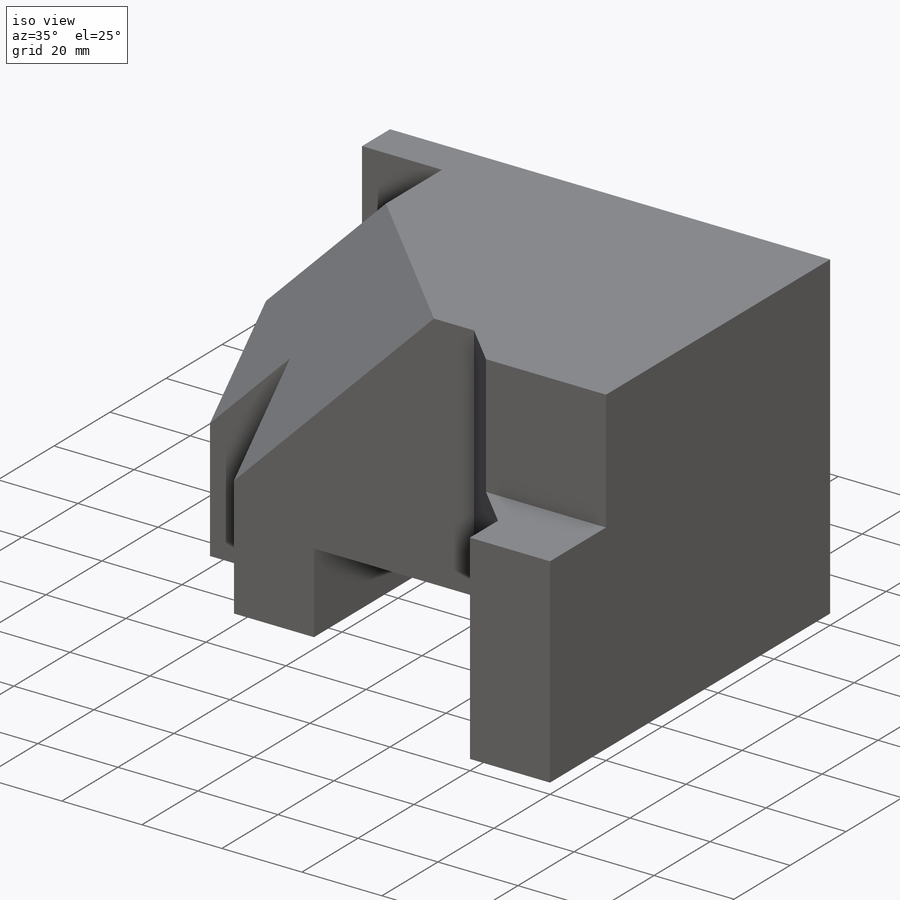
[diagram: iso view]
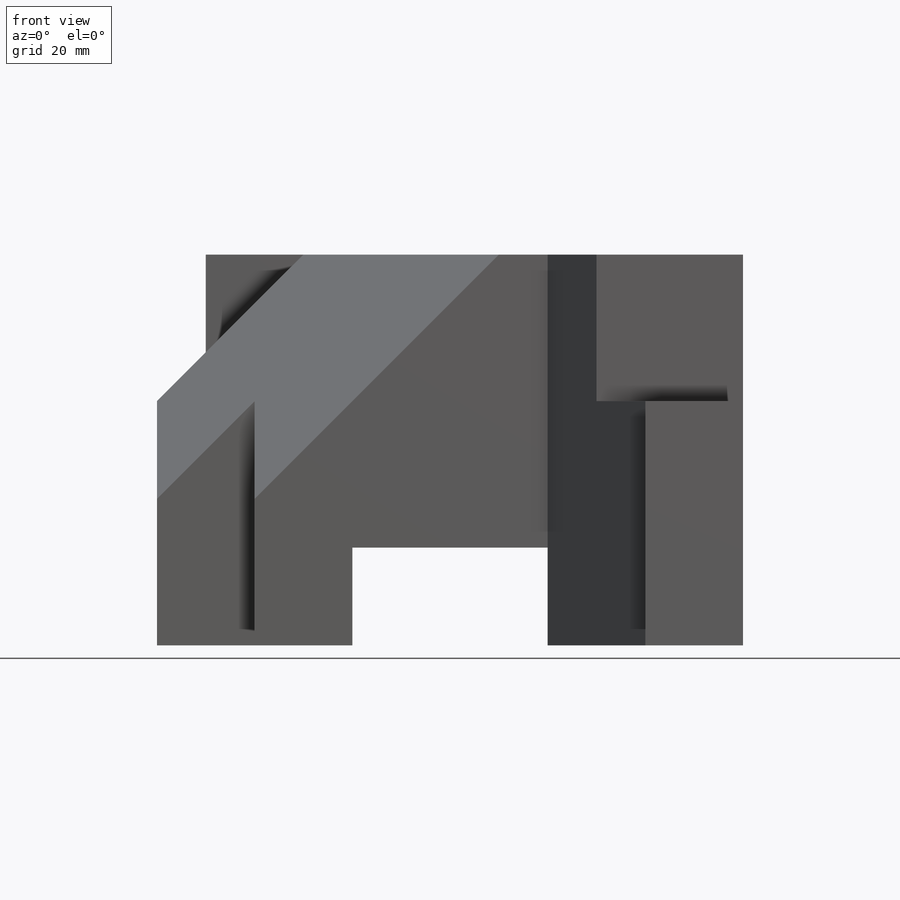
[diagram: front view]
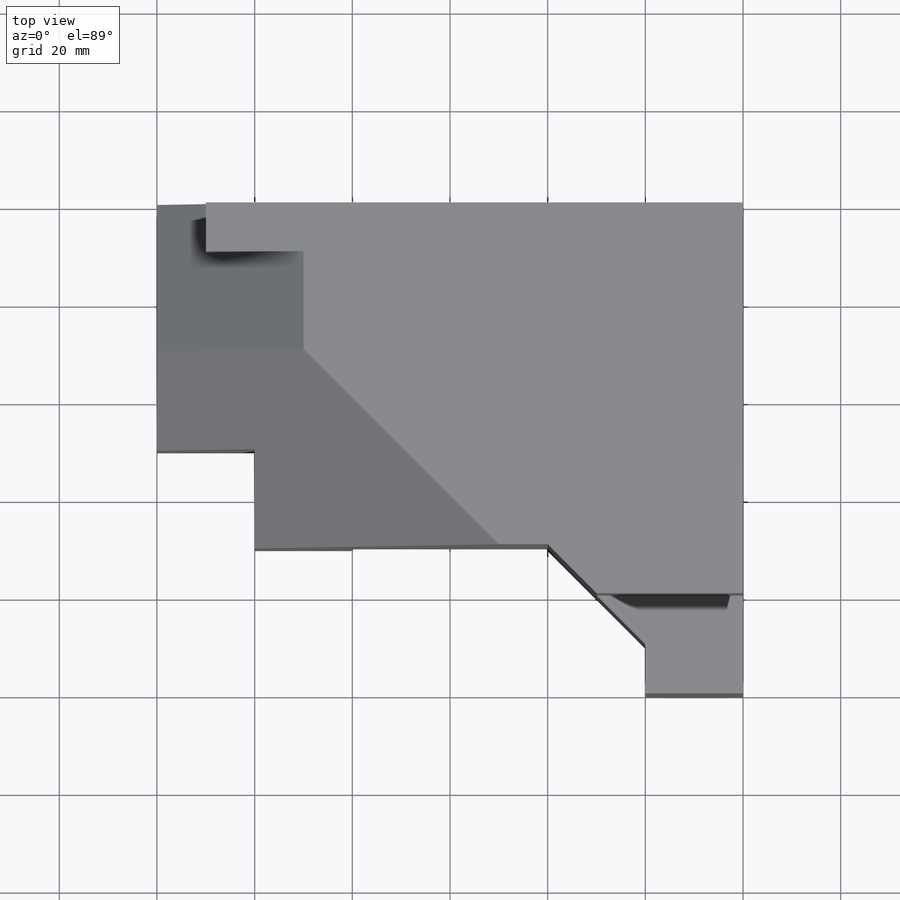
[diagram: top view]
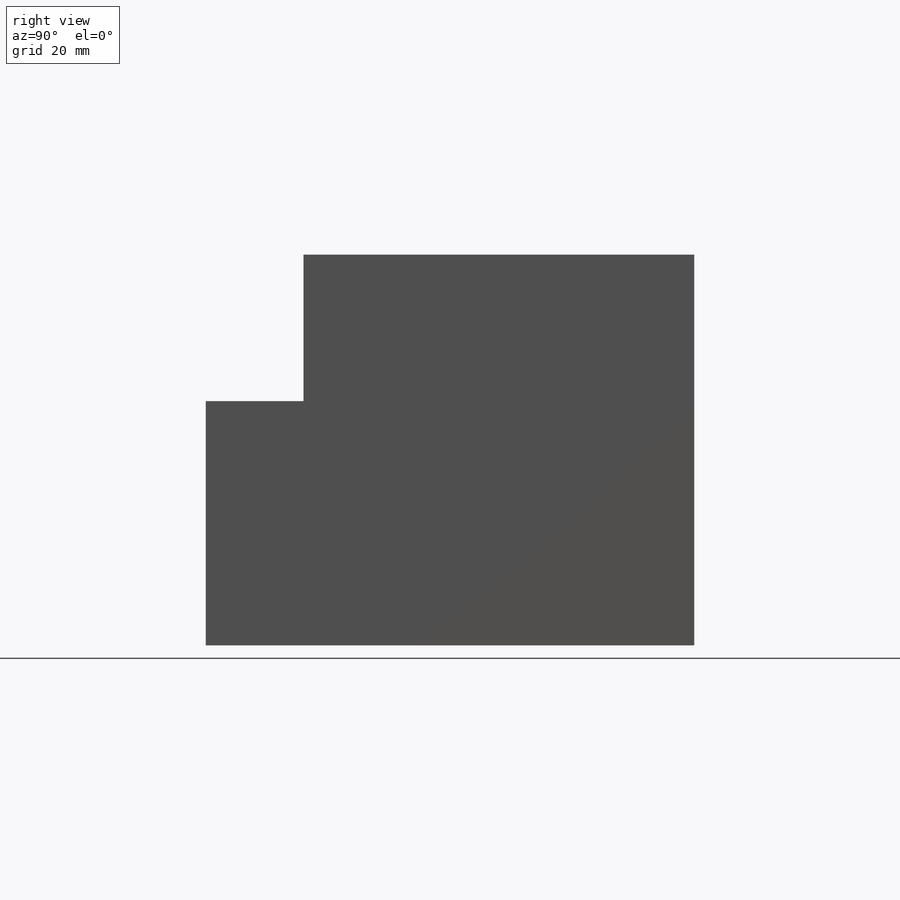
[diagram: right view]
SOLIDWORKS PART (.sldprt)
format: sldprt  version: not decoded by parser v0  size: 495,104 bytes
history: native  units: mm
features: sketch x32, cut_extrude x16, plane x11, extrude x10, material x1 (+13 scaffold rows collapsed)
feature tree (83):
  scaffold x13  (default folders/planes/origin — collapsed)
  material  "Material <not specified>"
  sketch  "Sketch1"  dims[D1=120.0mm D2=80.0mm]
  extrude  "Boss-Extrude1"  Depth=100mm
  sketch  "Sketch2"  dims[D1=40.0mm D2=20.0mm D3=40.0mm]
  cut_extrude  "Cut-Extrude1"  Depth=100mm
  sketch  "Sketch3"  dims[D1=10.0mm D2=30.0mm D3=20.0mm]
  cut_extrude  "Cut-Extrude2"  Depth=100mm
  sketch  "Sketch4"  dims[D1=20.0mm D2=50.0mm]
  cut_extrude  "Cut-Extrude3"  Depth=100mm
  sketch  "Sketch5"  dims[D1=60.0mm D2=30.0mm]
  cut_extrude  "Cut-Extrude4"  Depth=100mm
  sketch  "Sketch6"  dims[D1=10.0mm D2=20.0mm D3=20.0mm]
  cut_extrude  "Cut-Extrude5"  Depth=100mm
  sketch  "Sketch7"  dims[D1=20.0mm D2=30.0mm]
  cut_extrude  "Cut-Extrude6"  Depth=30mm
  plane  "Plane1"  Offset=90mm
  sketch  "Sketch9"  dims[D1=20.0mm D2=20.0mm D3=0.0mm]
  cut_extrude  "Cut-Extrude7"  Depth=110mm
  sketch  "Sketch10"  dims[D1=30.0mm]
  sketch  "Sketch11"  dims[D1=30.0mm]
  sketch  "Sketch12"  dims[D1=50.0mm]
  plane  "Plane2"
  sketch  "Sketch14"  dims[D1=20.0mm D2=20.0mm]
  plane  "Plane3"
  sketch  "Sketch15"
  cut_extrude  "Cut-Extrude8"  Depth=110mm
  sketch  "Sketch16"  dims[D1=10.0mm]
  sketch  "Sketch17"  dims[D1=20.0mm]
  plane  "Plane4"
  sketch  "Sketch18"
  cut_extrude  "Cut-Extrude9"  Depth=110mm
  plane  "Plane5"
  sketch  "Sketch19"
  cut_extrude  "Cut-Extrude11"  Depth=110mm
  sketch  "Sketch20"
  cut_extrude  "Cut-Extrude12"  Depth=110mm
  plane  "Plane6"  Offset=70mm
  sketch  "Sketch23"
  cut_extrude  "Cut-Extrude13"  Depth=110mm
  plane  "Plane7"
  sketch  "Sketch27"
  extrude  "Boss-Extrude4"  Depth=50mm
  plane  "Plane11"
  sketch  "Sketch28"
  extrude  "Boss-Extrude6"  Depth=40mm
  sketch  "Sketch29"
  extrude  "Boss-Extrude7"  Depth=40mm
  plane  "Plane12"  Offset=40mm
  sketch  "Sketch30"  dims[D1=30.0mm D2=20.0mm D3=20.0mm D4=20.0mm]
  cut_extrude  "Cut-Extrude18"  Depth=20mm
  sketch  "Sketch33"
  cut_extrude  "Cut-Extrude19"  Depth=20mm
  sketch  "Sketch34"
  extrude  "Boss-Extrude8"  Depth=30mm
  sketch  "Sketch35"
  cut_extrude  "Cut-Extrude20"  Depth=30mm
  sketch  "Sketch36"  dims[D1=20.0mm D2=30.0mm]
  extrude  "Boss-Extrude9"  Depth=30mm
  sketch  "Sketch37"
  extrude  "Boss-Extrude10"  Depth=30mm
  plane  "Plane13"
  sketch  "Sketch38"
  extrude  "Boss-Extrude11"  Depth=30mm
  plane  "Plane14"
  sketch  "Sketch39"
  extrude  "Boss-Extrude12"  Depth=30mm
  sketch  "Sketch40"
  extrude  "Boss-Extrude13"  Depth=30mm
  sketch  "Sketch41"
  cut_extrude  "Cut-Extrude21"  Depth=172mm
decode coverage: 42 of 58 modeling features carry decoded parameters
note: suppression state not decoded; provenance and decode notes live in map.json
